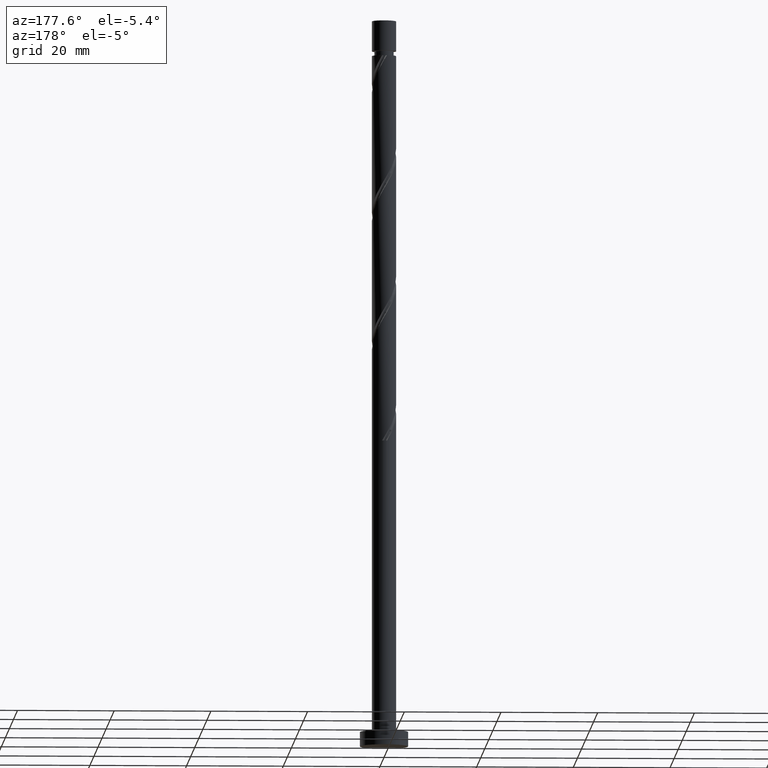
[diagram: clean part render]
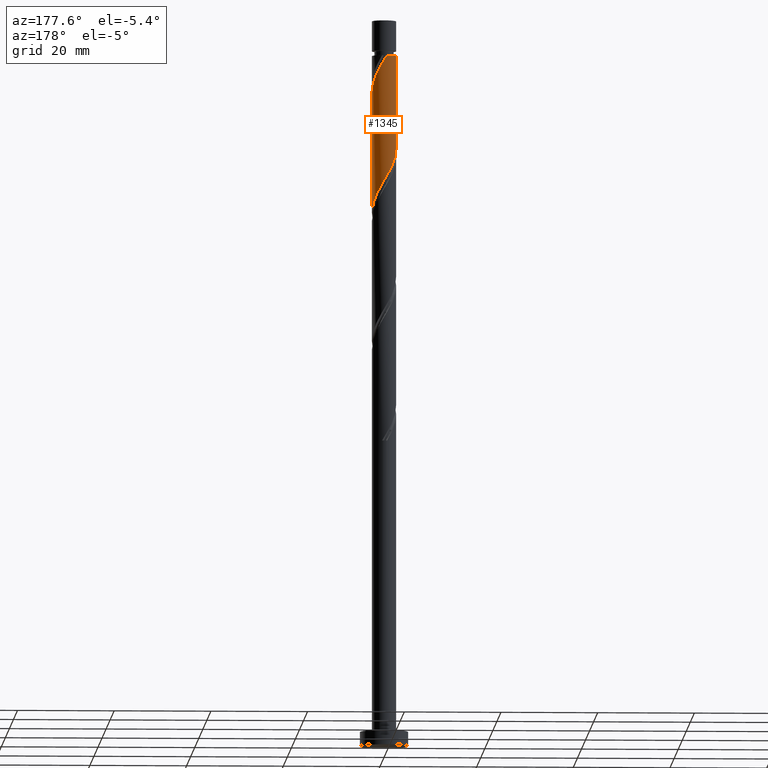
[diagram: same view with one face highlighted and labeled with its STEP entity id]
A machine part, auxiliary view. The second image highlights one B-rep face of the part: STEP entity #1345.
In plain terms, the highlighted cylindrical surface (edge-blend (fillet) strip) has radius 2.5 mm, axis along (-0, -0, -1).
Its self-contained STEP definition (entity closure, byte-faithful):
#25 = ORIENTED_EDGE ( 'NONE', *, *, #1471, .T. ) ;
#77 = CARTESIAN_POINT ( 'NONE',  ( -2.354261794510395855, 0.8411013035946938166, 122.6859403078350397 ) ) ;
#102 = CARTESIAN_POINT ( 'NONE',  ( -0.2129030368922524008, 2.490917962696093557, 117.8374554593502239 ) ) ;
#116 = CARTESIAN_POINT ( 'NONE',  ( 2.435264748179749805, 0.5652305779706332522, 111.7768493987441332 ) ) ;
#121 = CYLINDRICAL_SURFACE ( 'NONE', #562, 2.500000000000000000 ) ;
#141 =( BOUNDED_CURVE ( )  B_SPLINE_CURVE ( 2, ( #727, #470, #1113, #1220, #77, #991, #588, #1505, #342, #1372, #1243, #1639, #102, #999, #1513, #349, #1380, #1056, #906, #148, #366, #758, #116, #1283, #1257 ),
 .UNSPECIFIED., .F., .T. ) 
 B_SPLINE_CURVE_WITH_KNOTS ( ( 3, 2, 2, 2, 2, 2, 2, 2, 2, 2, 2, 2, 3 ),
 ( 0.4295252162417514397, 0.4318181818181818232, 0.4431818181818181768, 0.4545454545454545303, 0.4659090909090908839, 0.4772727272727272929, 0.4886363636363636465, 0.5000000000000000000, 0.5113636363636363535, 0.5227272727272727071, 0.5340909090909090606, 0.5454545454545454142, 0.5545252162417511066 ),
 .UNSPECIFIED. ) 
 CURVE ( )  GEOMETRIC_REPRESENTATION_ITEM ( )  RATIONAL_B_SPLINE_CURVE ( ( 0.9061101570135581262, 0.9072237824201403456, 0.9090909090909178314, 0.8998376744372202918, 0.9090909090909178314, 0.8998376744372202918, 0.9090909090909178314, 0.8998376744372202918, 0.9090909090909178314, 0.8998376744372202918, 0.9090909090909178314, 0.8998376744372202918, 0.9090909090909178314, 0.8998376744372202918, 0.9090909090909178314, 0.8998376744372202918, 0.9090909090909178314, 0.8998376744372202918, 0.9090909090909178314, 0.8998376744372202918, 0.9090909090909178314, 0.8998376744372202918, 0.9090909090909178314, 0.9017048011079978886, 0.9061101570135579042 ) ) 
 REPRESENTATION_ITEM ( '' )  );
#148 = CARTESIAN_POINT ( 'NONE',  ( 2.000754257700505523, 1.541487475360715509, 113.5950312169259462 ) ) ;
#174 = EDGE_CURVE ( 'NONE', #691, #621, #502, .T. ) ;
#178 = CARTESIAN_POINT ( 'NONE',  ( 2.354261794510398964, 0.8411013035946940386, 137.2313948532895722 ) ) ;
#233 = CARTESIAN_POINT ( 'NONE',  ( 0.000000000000000000, 0.000000000000000000, 150.5000000000000000 ) ) ;
#240 = AXIS2_PLACEMENT_3D ( 'NONE', #1032, #1544, #370 ) ;
#254 = CARTESIAN_POINT ( 'NONE',  ( 2.500000000000000000, 3.061616997868383141E-16, 150.5000000000000000 ) ) ;
#342 = CARTESIAN_POINT ( 'NONE',  ( -1.525797355502942043, 1.980389464206530281, 120.2616978835926460 ) ) ;
#349 = CARTESIAN_POINT ( 'NONE',  ( 0.8497505388409958282, 2.378471201873189056, 116.0192736411683683 ) ) ;
#366 = CARTESIAN_POINT ( 'NONE',  ( 2.177375558832922220, 1.228428132125366723, 112.9889706108653513 ) ) ;
#370 = DIRECTION ( 'NONE',  ( -1.000000000000000000, 0.000000000000000000, 0.000000000000000000 ) ) ;
#385 = EDGE_CURVE ( 'NONE', #622, #656, #1388, .T. ) ;
#413 = CARTESIAN_POINT ( 'NONE',  ( 2.500000000000003997, 0.07193881630955460682, 135.8979777726462999 ) ) ;
#421 = CARTESIAN_POINT ( 'NONE',  ( 2.021932029057392999, 1.470302985738610069, 138.4435160654107619 ) ) ;
#470 = CARTESIAN_POINT ( 'NONE',  ( -2.500000000000000444, 0.07193881630955990814, 124.0193573884783405 ) ) ;
#492 = DIRECTION ( 'NONE',  ( -0.000000000000000000, -0.000000000000000000, -1.000000000000000000 ) ) ;
#502 = LINE ( 'NONE', #254, #1297 ) ;
#504 = EDGE_CURVE ( 'NONE', #656, #621, #141, .T. ) ;
#556 = CARTESIAN_POINT ( 'NONE',  ( 2.500000000000003109, -1.316200221907677803E-15, 135.7758797679281031 ) ) ;
#562 = AXIS2_PLACEMENT_3D ( 'NONE', #233, #1261, #1133 ) ;
#567 = ORIENTED_EDGE ( 'NONE', *, *, #174, .T. ) ;
#580 = CARTESIAN_POINT ( 'NONE',  ( 1.810534374112180434, 1.761012923450276935, 139.0495766714714136 ) ) ;
#588 = CARTESIAN_POINT ( 'NONE',  ( -2.021932029057389890, 1.470302985738608958, 121.4738190957138642 ) ) ;
#621 = VERTEX_POINT ( 'NONE', #1159 ) ;
#622 = VERTEX_POINT ( 'NONE', #1538 ) ;
#656 = VERTEX_POINT ( 'NONE', #789 ) ;
#691 = VERTEX_POINT ( 'NONE', #1341 ) ;
#727 = CARTESIAN_POINT ( 'NONE',  ( -2.499999999999999556, 2.998842551051037218E-15, 124.1414553931965372 ) ) ;
#744 = ORIENTED_EDGE ( 'NONE', *, *, #748, .F. ) ;
#748 = EDGE_CURVE ( 'NONE', #691, #1010, #1224, .T. ) ;
#758 = CARTESIAN_POINT ( 'NONE',  ( 2.353996859965339805, 0.9153687888900154945, 112.3829100048047422 ) ) ;
#789 = CARTESIAN_POINT ( 'NONE',  ( -2.499999999999999556, 2.998842551051037612E-15, 124.1414553931965372 ) ) ;
#801 = DIRECTION ( 'NONE',  ( -0.000000000000000000, -0.000000000000000000, -1.000000000000000000 ) ) ;
#807 = CARTESIAN_POINT ( 'NONE',  ( 1.525797355502944486, 1.980389464206532946, 139.6556372775319801 ) ) ;
#819 = CARTESIAN_POINT ( 'NONE',  ( 2.495863270706177417, 0.1437585960555962661, 136.0192736411683541 ) ) ;
#906 = CARTESIAN_POINT ( 'NONE',  ( 1.743088351060507524, 1.792105744758706543, 114.2010918229865837 ) ) ;
#934 = CARTESIAN_POINT ( 'NONE',  ( 0.2129030368922534833, 2.490917962696097554, 142.0798797017744448 ) ) ;
#942 = CARTESIAN_POINT ( 'NONE',  ( 0.9060516544719209309, 2.330036566114084273, 140.8677584896532551 ) ) ;
#949 = CARTESIAN_POINT ( 'NONE',  ( 2.233329684002606896, 1.179593048026943647, 137.8374554593501955 ) ) ;
#972 = CARTESIAN_POINT ( 'NONE',  ( -2.500000000000000000, 0.000000000000000000, 150.5000000000000000 ) ) ;
#991 = CARTESIAN_POINT ( 'NONE',  ( -2.233329684002602455, 1.179593048026942981, 122.0798797017744448 ) ) ;
#999 = CARTESIAN_POINT ( 'NONE',  ( 0.1452368982656262741, 2.521528798126809967, 117.2313948532896006 ) ) ;
#1010 = VERTEX_POINT ( 'NONE', #1465 ) ;
#1020 = VECTOR ( 'NONE', #492, 1000.000000000000000 ) ;
#1028 = ORIENTED_EDGE ( 'NONE', *, *, #385, .F. ) ;
#1032 = CARTESIAN_POINT ( 'NONE',  ( 0.000000000000000000, 0.000000000000000000, 143.2920009138956630 ) ) ;
#1056 = CARTESIAN_POINT ( 'NONE',  ( 1.485422444420510191, 2.042724014156697798, 114.8071524290471501 ) ) ;
#1098 = CARTESIAN_POINT ( 'NONE',  ( 0.5710429720501329909, 2.460307127265380256, 141.4738190957138215 ) ) ;
#1113 = CARTESIAN_POINT ( 'NONE',  ( -2.495863270706175197, 0.1437585960555969877, 123.8980615199562720 ) ) ;
#1133 = DIRECTION ( 'NONE',  ( -1.000000000000000000, 0.000000000000000000, 0.000000000000000000 ) ) ;
#1159 = CARTESIAN_POINT ( 'NONE',  ( 2.500000000000000444, 3.484939223914673654E-15, 110.8081220598632228 ) ) ;
#1198 = EDGE_LOOP ( 'NONE', ( #744, #567, #1641, #1028, #25 ) ) ;
#1205 = CARTESIAN_POINT ( 'NONE',  ( 1.241060336893710314, 2.199766004962788735, 140.2616978835926318 ) ) ;
#1220 = CARTESIAN_POINT ( 'NONE',  ( -2.475193905018188367, 0.5026095591624447634, 123.2920009138956630 ) ) ;
#1224 =( BOUNDED_CURVE ( )  B_SPLINE_CURVE ( 2, ( #556, #413, #819, #1468, #178, #949, #421, #580, #807, #1205, #942, #1098, #934, #1608, #1314 ),
 .UNSPECIFIED., .F., .T. ) 
 B_SPLINE_CURVE_WITH_KNOTS ( ( 3, 2, 2, 2, 2, 2, 2, 3 ),
 ( 0.6795252162417513286, 0.6818181818181818787, 0.6931818181818182323, 0.7045454545454546968, 0.7159090909090910504, 0.7272727272727275150, 0.7386363636363639795, 0.7500000000000003331 ),
 .UNSPECIFIED. ) 
 CURVE ( )  GEOMETRIC_REPRESENTATION_ITEM ( )  RATIONAL_B_SPLINE_CURVE ( ( 0.9061101570135650096, 0.9072237824201471179, 0.9090909090909247148, 0.8998376744372269531, 0.9090909090909247148, 0.8998376744372269531, 0.9090909090909247148, 0.8998376744372269531, 0.9090909090909247148, 0.8998376744372269531, 0.9090909090909247148, 0.8998376744372269531, 0.9090909090909247148, 0.8998376744372267311, 0.9090909090909249368 ) ) 
 REPRESENTATION_ITEM ( '' )  );
#1227 = CIRCLE ( 'NONE', #240, 2.499999999999994227 ) ;
#1243 = CARTESIAN_POINT ( 'NONE',  ( -0.9060516544719195986, 2.330036566114080276, 119.0495766714713994 ) ) ;
#1254 = FACE_OUTER_BOUND ( 'NONE', #1198, .T. ) ;
#1257 = CARTESIAN_POINT ( 'NONE',  ( 2.500000000000000444, 3.484939223914673654E-15, 110.8081220598632228 ) ) ;
#1261 = DIRECTION ( 'NONE',  ( -0.000000000000000000, -0.000000000000000000, -1.000000000000000000 ) ) ;
#1283 = CARTESIAN_POINT ( 'NONE',  ( 2.499999999999999112, 0.2863223184628113094, 111.2940820128345223 ) ) ;
#1297 = VECTOR ( 'NONE', #801, 1000.000000000000000 ) ;
#1314 = CARTESIAN_POINT ( 'NONE',  ( -0.4974937185533105932, 2.450000000000002398, 143.2920009138956630 ) ) ;
#1341 = CARTESIAN_POINT ( 'NONE',  ( 2.500000000000003109, -1.316200221907677803E-15, 135.7758797679281031 ) ) ;
#1345 = ADVANCED_FACE ( 'NONE', ( #1254 ), #121, .T. ) ;
#1372 = CARTESIAN_POINT ( 'NONE',  ( -1.241060336893708538, 2.199766004962784738, 119.6556372775319943 ) ) ;
#1380 = CARTESIAN_POINT ( 'NONE',  ( 1.167586491630753009, 2.210597608014943205, 115.4132130351077876 ) ) ;
#1388 = LINE ( 'NONE', #972, #1020 ) ;
#1465 = CARTESIAN_POINT ( 'NONE',  ( -0.4974937185533105932, 2.450000000000002398, 143.2920009138956630 ) ) ;
#1468 = CARTESIAN_POINT ( 'NONE',  ( 2.475193905018191920, 0.5026095591624447634, 136.6253342472289773 ) ) ;
#1471 = EDGE_CURVE ( 'NONE', #622, #1010, #1227, .T. ) ;
#1505 = CARTESIAN_POINT ( 'NONE',  ( -1.810534374112175993, 1.761012923450275158, 120.8677584896532551 ) ) ;
#1513 = CARTESIAN_POINT ( 'NONE',  ( 0.4974937185533115924, 2.449999999999999734, 116.6253342472289916 ) ) ;
#1538 = CARTESIAN_POINT ( 'NONE',  ( -2.499999999999994227, 0.000000000000000000, 143.2920009138956630 ) ) ;
#1544 = DIRECTION ( 'NONE',  ( -0.000000000000000000, -0.000000000000000000, -1.000000000000000000 ) ) ;
#1608 = CARTESIAN_POINT ( 'NONE',  ( -0.1452368982656363772, 2.521528798126814852, 142.6859403078350681 ) ) ;
#1639 = CARTESIAN_POINT ( 'NONE',  ( -0.5710429720501312145, 2.460307127265375371, 118.4435160654107904 ) ) ;
#1641 = ORIENTED_EDGE ( 'NONE', *, *, #504, .F. ) ;